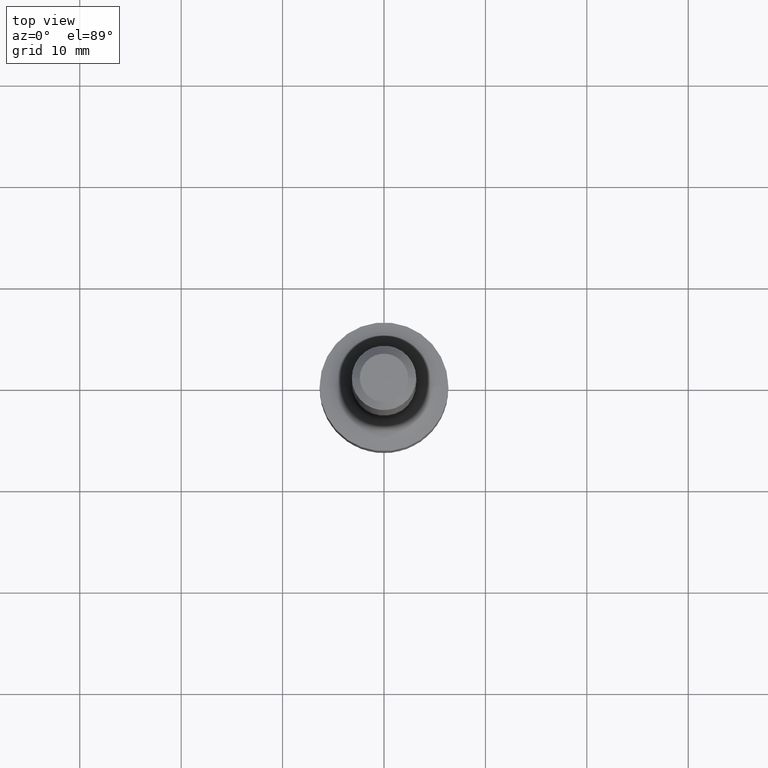
[diagram: clean part render]
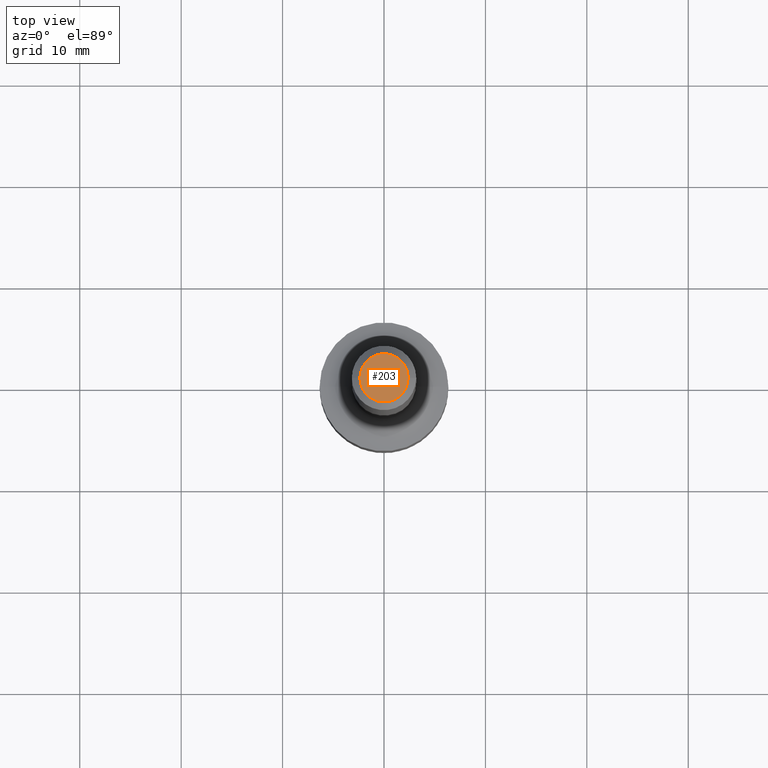
[diagram: same view with one face highlighted and labeled with its STEP entity id]
A machine part, top view. The second image highlights one B-rep face of the part: STEP entity #203.
In plain terms, the highlighted planar face has unit normal (0, -0, -1).
Its self-contained STEP definition (entity closure, byte-faithful):
#24 = EDGE_CURVE ( 'NONE', #269, #437, #61, .T. ) ;
#57 = EDGE_CURVE ( 'NONE', #437, #269, #211, .T. ) ;
#61 = CIRCLE ( 'NONE', #489, 0.09379999999999999449 ) ;
#67 = FACE_OUTER_BOUND ( 'NONE', #350, .T. ) ;
#83 = DIRECTION ( 'NONE',  ( -2.445468806185136597E-29, 3.491481338843145583E-15, 1.000000000000000000 ) ) ;
#96 = DIRECTION ( 'NONE',  ( -1.000000000000000000, 6.982962677686265922E-15, -4.876176775795935793E-29 ) ) ;
#100 = PLANE ( 'NONE',  #231 ) ;
#125 = DIRECTION ( 'NONE',  ( -2.445468806185136597E-29, 3.491481338843145583E-15, 1.000000000000000000 ) ) ;
#197 = DIRECTION ( 'NONE',  ( 1.000000000000000000, -6.982962677686266711E-15, 4.876421767504995250E-29 ) ) ;
#203 = ADVANCED_FACE ( 'NONE', ( #67 ), #100, .F. ) ;
#205 = CARTESIAN_POINT ( 'NONE',  ( 3.743544432386658428E-46, -5.344789307371216869E-32, -1.530808498934191509E-17 ) ) ;
#211 = CIRCLE ( 'NONE', #331, 0.09379999999999999449 ) ;
#214 = ORIENTED_EDGE ( 'NONE', *, *, #24, .T. ) ;
#227 = DIRECTION ( 'NONE',  ( 2.438088387897960049E-29, -3.491481338843145188E-15, -1.000000000000000000 ) ) ;
#231 = AXIS2_PLACEMENT_3D ( 'NONE', #260, #227, #96 ) ;
#260 = CARTESIAN_POINT ( 'NONE',  ( 6.550018991669718048E-16, 0.09379999999999999449, -3.351549920781579832E-16 ) ) ;
#269 = VERTEX_POINT ( 'NONE', #486 ) ;
#281 = ORIENTED_EDGE ( 'NONE', *, *, #57, .T. ) ;
#323 = CARTESIAN_POINT ( 'NONE',  ( 3.743544432386658428E-46, -5.344789307371216869E-32, -1.530808498934191509E-17 ) ) ;
#331 = AXIS2_PLACEMENT_3D ( 'NONE', #205, #125, #197 ) ;
#350 = EDGE_LOOP ( 'NONE', ( #281, #214 ) ) ;
#437 = VERTEX_POINT ( 'NONE', #477 ) ;
#477 = CARTESIAN_POINT ( 'NONE',  ( -0.09379999999999999449, 7.094690080529240967E-16, -1.530808498934668523E-17 ) ) ;
#481 = DIRECTION ( 'NONE',  ( 1.000000000000000000, -6.982962677686266711E-15, 4.876421767504995250E-29 ) ) ;
#486 = CARTESIAN_POINT ( 'NONE',  ( 0.09379999999999999449, -8.050055898421590350E-16, -1.530808498933680906E-17 ) ) ;
#489 = AXIS2_PLACEMENT_3D ( 'NONE', #323, #83, #481 ) ;